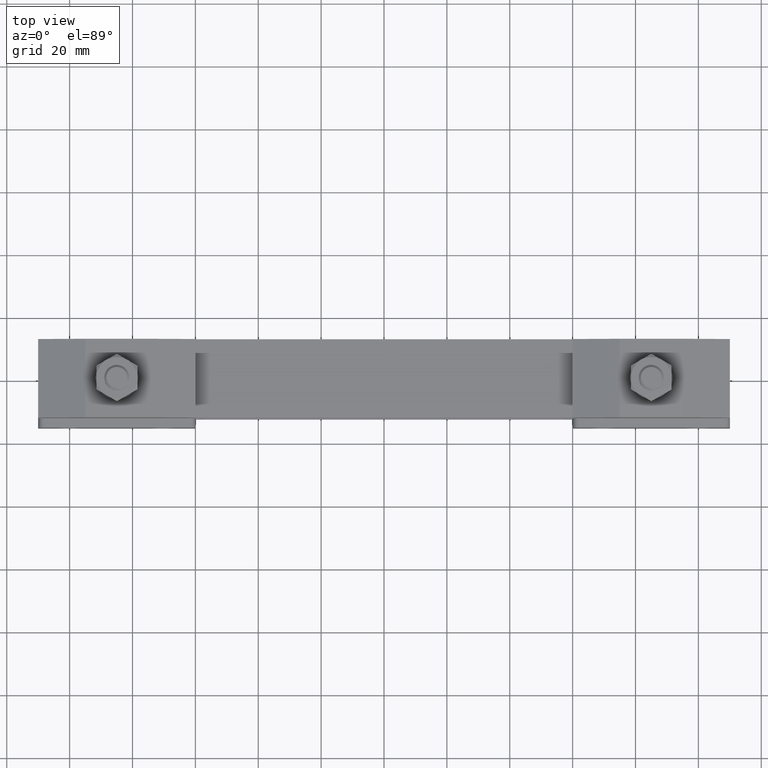
[diagram: clean part render]
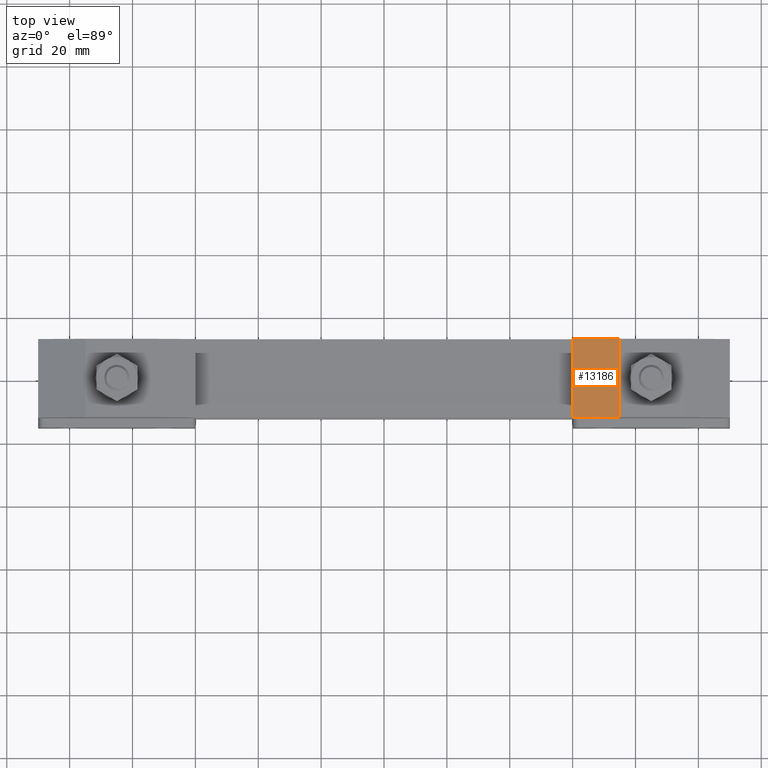
[diagram: same view with one face highlighted and labeled with its STEP entity id]
A machine part, top view. The second image highlights one B-rep face of the part: STEP entity #13186.
In plain terms, the highlighted planar face has unit normal (0.3162, -0, -0.9487).
Its self-contained STEP definition (entity closure, byte-faithful):
#586 = EDGE_LOOP ( 'NONE', ( #5382, #15724, #17039, #6739 ) ) ;
#764 = CARTESIAN_POINT ( 'NONE',  ( 103.8000000000000100, 12.50000000000002100, 47.09999999999997300 ) ) ;
#1320 = EDGE_CURVE ( 'NONE', #17845, #5096, #19183, .T. ) ;
#1593 = DIRECTION ( 'NONE',  ( 0.0000000000000000000, -1.000000000000000000, 0.0000000000000000000 ) ) ;
#3895 = EDGE_CURVE ( 'NONE', #14210, #18401, #14452, .T. ) ;
#4547 = DIRECTION ( 'NONE',  ( -0.9486832980505138800, 1.053250040573010400E-016, -0.3162277660168378300 ) ) ;
#5096 = VERTEX_POINT ( 'NONE', #12780 ) ;
#5382 = ORIENTED_EDGE ( 'NONE', *, *, #3895, .F. ) ;
#6372 = CARTESIAN_POINT ( 'NONE',  ( 75.00000000000001400, -13.99999999999998000, 37.49999999999997900 ) ) ;
#6520 = LINE ( 'NONE', #764, #14918 ) ;
#6739 = ORIENTED_EDGE ( 'NONE', *, *, #18002, .F. ) ;
#8542 = EDGE_CURVE ( 'NONE', #5096, #14210, #6520, .T. ) ;
#10188 = CARTESIAN_POINT ( 'NONE',  ( 75.00000000000000000, -12.49999999999998400, 37.49999999999997900 ) ) ;
#10216 = FACE_OUTER_BOUND ( 'NONE', #586, .T. ) ;
#10902 = DIRECTION ( 'NONE',  ( 0.9486832980505138800, -1.053250040573010400E-016, 0.3162277660168378300 ) ) ;
#12780 = CARTESIAN_POINT ( 'NONE',  ( 60.00000000000001400, 12.50000000000002700, 32.49999999999997900 ) ) ;
#13186 = ADVANCED_FACE ( 'NONE', ( #10216 ), #18570, .F. ) ;
#13283 = CARTESIAN_POINT ( 'NONE',  ( 75.00000000000001400, 12.50000000000002500, 37.49999999999997900 ) ) ;
#14187 = VECTOR ( 'NONE', #1593, 1000.000000000000000 ) ;
#14210 = VERTEX_POINT ( 'NONE', #13283 ) ;
#14452 = LINE ( 'NONE', #10188, #14187 ) ;
#14918 = VECTOR ( 'NONE', #10902, 1000.000000000000000 ) ;
#15724 = ORIENTED_EDGE ( 'NONE', *, *, #8542, .F. ) ;
#17039 = ORIENTED_EDGE ( 'NONE', *, *, #1320, .F. ) ;
#17845 = VERTEX_POINT ( 'NONE', #18656 ) ;
#18002 = EDGE_CURVE ( 'NONE', #18401, #17845, #21112, .T. ) ;
#18401 = VERTEX_POINT ( 'NONE', #20903 ) ;
#18570 = PLANE ( 'NONE',  #20555 ) ;
#18656 = CARTESIAN_POINT ( 'NONE',  ( 60.00000000000001400, -12.49999999999998200, 32.49999999999997900 ) ) ;
#19183 = LINE ( 'NONE', #20991, #19737 ) ;
#19551 = DIRECTION ( 'NONE',  ( -0.9486832980505138800, 1.053250040573010400E-016, -0.3162277660168378300 ) ) ;
#19737 = VECTOR ( 'NONE', #21444, 1000.000000000000000 ) ;
#20555 = AXIS2_PLACEMENT_3D ( 'NONE', #6372, #22128, #4547 ) ;
#20903 = CARTESIAN_POINT ( 'NONE',  ( 75.00000000000000000, -12.49999999999998400, 37.49999999999997900 ) ) ;
#20991 = CARTESIAN_POINT ( 'NONE',  ( 60.00000000000001400, -13.99999999999997900, 32.49999999999997900 ) ) ;
#21112 = LINE ( 'NONE', #21140, #22489 ) ;
#21140 = CARTESIAN_POINT ( 'NONE',  ( 103.8000000000000100, -12.49999999999998800, 47.09999999999997300 ) ) ;
#21444 = DIRECTION ( 'NONE',  ( 0.0000000000000000000, 1.000000000000000000, 0.0000000000000000000 ) ) ;
#22128 = DIRECTION ( 'NONE',  ( 0.3162277660168378300, -3.510833468576699900E-017, -0.9486832980505138800 ) ) ;
#22489 = VECTOR ( 'NONE', #19551, 1000.000000000000000 ) ;